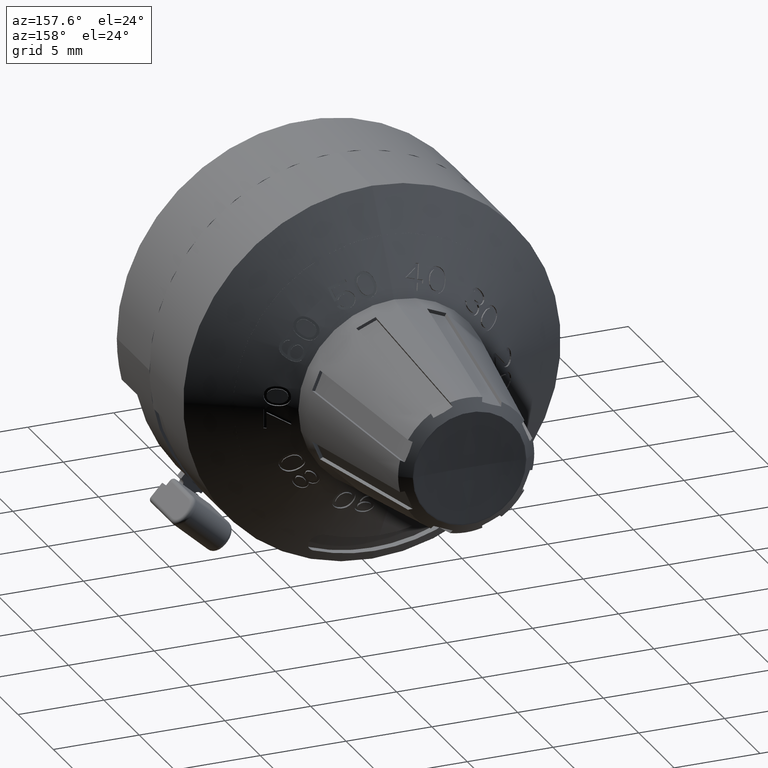
[diagram: clean part render]
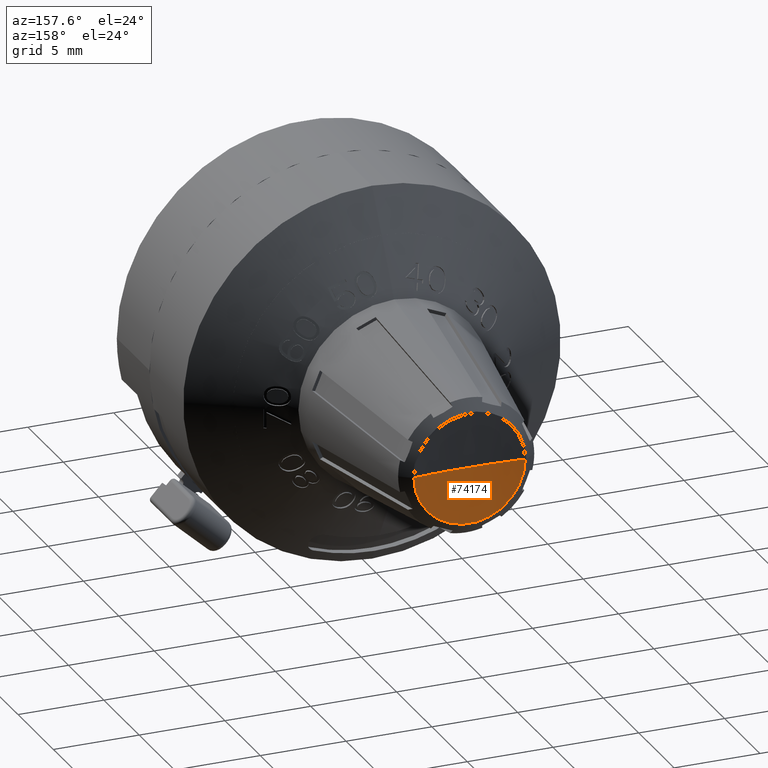
[diagram: same view with one face highlighted and labeled with its STEP entity id]
A machine part, auxiliary view. The second image highlights one B-rep face of the part: STEP entity #74174.
In plain terms, the highlighted spherical surface has radius 35 mm.
Its self-contained STEP definition (entity closure, byte-faithful):
#56611=CARTESIAN_POINT('',(0.E0,1.99297E1,0.E0));
#56612=DIRECTION('',(0.E0,1.E0,0.E0));
#56613=DIRECTION('',(1.E0,0.E0,0.E0));
#56614=AXIS2_PLACEMENT_3D('',#56611,#56612,#56613);
#56621=CARTESIAN_POINT('',(0.E0,5.477848046647E1,0.E0));
#56622=DIRECTION('',(0.E0,0.E0,-1.E0));
#56623=DIRECTION('',(0.E0,-1.E0,0.E0));
#56624=AXIS2_PLACEMENT_3D('',#56621,#56622,#56623);
#56626=CARTESIAN_POINT('',(0.E0,5.477848046647E1,0.E0));
#56627=DIRECTION('',(0.E0,0.E0,1.E0));
#56628=DIRECTION('',(0.E0,-1.E0,0.E0));
#56629=AXIS2_PLACEMENT_3D('',#56626,#56627,#56628);
#57165=CARTESIAN_POINT('',(3.25E0,1.99297E1,0.E0));
#57166=CARTESIAN_POINT('',(-3.25E0,1.99297E1,0.E0));
#57167=VERTEX_POINT('',#57165);
#57168=VERTEX_POINT('',#57166);
#57169=CARTESIAN_POINT('',(0.E0,1.977848046647E1,0.E0));
#57170=VERTEX_POINT('',#57169);
#74162=CARTESIAN_POINT('',(0.E0,5.477848046647E1,0.E0));
#74163=DIRECTION('',(0.E0,1.E0,0.E0));
#74164=DIRECTION('',(1.E0,0.E0,0.E0));
#74165=AXIS2_PLACEMENT_3D('',#74162,#74163,#74164);
#74166=SPHERICAL_SURFACE('',#74165,3.5E1);
#74167=ORIENTED_EDGE('',*,*,#74155,.F.);
#74169=ORIENTED_EDGE('',*,*,#74168,.F.);
#74171=ORIENTED_EDGE('',*,*,#74170,.T.);
#74172=EDGE_LOOP('',(#74167,#74169,#74171));
#74173=FACE_OUTER_BOUND('',#74172,.F.);
#74174=ADVANCED_FACE('',(#74173),#74166,.F.);
#56615=CIRCLE('',#56614,3.25E0);
#56625=CIRCLE('',#56624,3.5E1);
#56630=CIRCLE('',#56629,3.5E1);
#74155=EDGE_CURVE('',#57167,#57168,#56615,.T.);
#74168=EDGE_CURVE('',#57170,#57167,#56630,.T.);
#74170=EDGE_CURVE('',#57170,#57168,#56625,.T.);